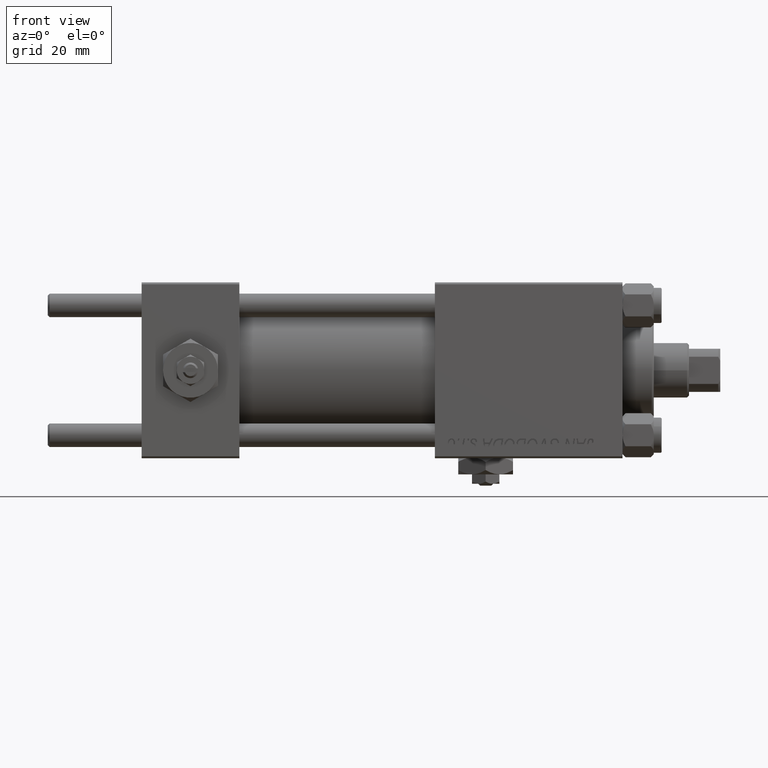
[diagram: clean part render]
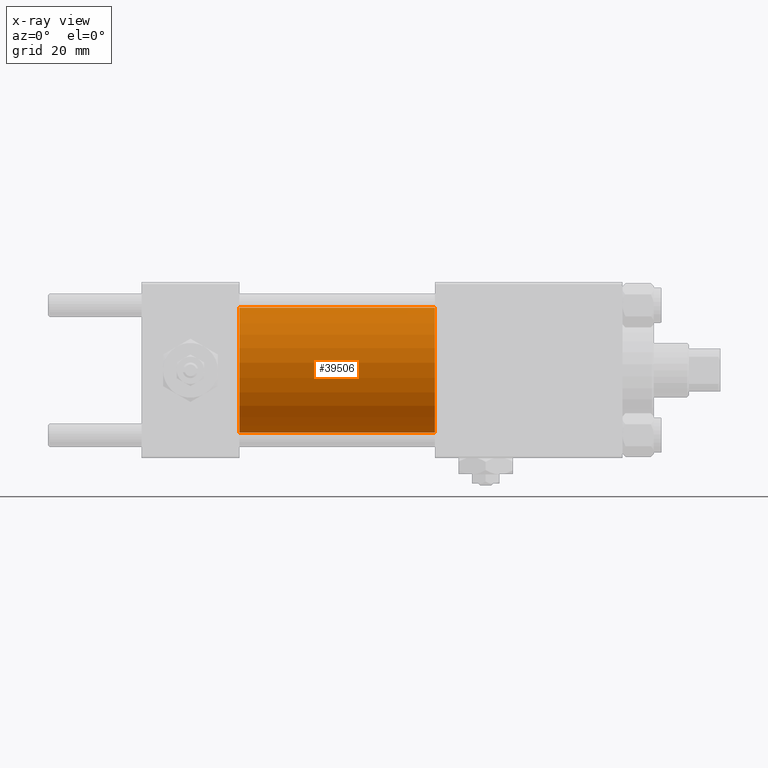
[diagram: x-ray — body ghosted, one internal face saturated and labeled with its STEP entity id]
A machine part, front view, then the same camera in x-ray: the body is ghosted and one INTERNAL B-rep face — a face not visible from any outside direction — is saturated and labeled: STEP entity #39506.
In plain terms, the highlighted cylindrical surface (partial cylindrical patch) has radius 16 mm, axis along (-1, -0, -0).
Its self-contained STEP definition (entity closure, byte-faithful):
#294 = CYLINDRICAL_SURFACE ( 'NONE', #44937, 16.00000000000000000 ) ;
#1472 = DIRECTION ( 'NONE',  ( -1.000000000000000000, -0.000000000000000000, -0.000000000000000000 ) ) ;
#2802 = LINE ( 'NONE', #34771, #21401 ) ;
#3064 = DIRECTION ( 'NONE',  ( -1.000000000000000000, -0.000000000000000000, -0.000000000000000000 ) ) ;
#7466 = VERTEX_POINT ( 'NONE', #37978 ) ;
#8526 = CARTESIAN_POINT ( 'NONE',  ( 25.00000000000000000, 0.000000000000000000, 0.000000000000000000 ) ) ;
#8685 = DIRECTION ( 'NONE',  ( 0.000000000000000000, 0.000000000000000000, 1.000000000000000000 ) ) ;
#8813 = LINE ( 'NONE', #48894, #16994 ) ;
#11588 = CARTESIAN_POINT ( 'NONE',  ( 75.00000000000001421, 0.000000000000000000, 0.000000000000000000 ) ) ;
#13189 = EDGE_CURVE ( 'NONE', #7466, #31220, #20528, .T. ) ;
#16280 = CARTESIAN_POINT ( 'NONE',  ( 75.00000000000001421, 0.000000000000000000, 0.000000000000000000 ) ) ;
#16994 = VECTOR ( 'NONE', #1472, 1000.000000000000000 ) ;
#18619 = CARTESIAN_POINT ( 'NONE',  ( 25.00000000000000000, 1.959434878635765131E-15, -16.00000000000000000 ) ) ;
#18794 = AXIS2_PLACEMENT_3D ( 'NONE', #11588, #27826, #23900 ) ;
#20309 = VERTEX_POINT ( 'NONE', #30118 ) ;
#20528 = CIRCLE ( 'NONE', #21359, 16.00000000000000000 ) ;
#20577 = DIRECTION ( 'NONE',  ( 0.000000000000000000, 0.000000000000000000, -1.000000000000000000 ) ) ;
#21359 = AXIS2_PLACEMENT_3D ( 'NONE', #8526, #24512, #20577 ) ;
#21401 = VECTOR ( 'NONE', #3064, 1000.000000000000000 ) ;
#23167 = ORIENTED_EDGE ( 'NONE', *, *, #13189, .F. ) ;
#23758 = ORIENTED_EDGE ( 'NONE', *, *, #30948, .F. ) ;
#23900 = DIRECTION ( 'NONE',  ( 0.000000000000000000, 0.000000000000000000, -1.000000000000000000 ) ) ;
#24512 = DIRECTION ( 'NONE',  ( 1.000000000000000000, 0.000000000000000000, 0.000000000000000000 ) ) ;
#27826 = DIRECTION ( 'NONE',  ( 1.000000000000000000, 0.000000000000000000, 0.000000000000000000 ) ) ;
#28336 = FACE_OUTER_BOUND ( 'NONE', #42523, .T. ) ;
#30118 = CARTESIAN_POINT ( 'NONE',  ( 75.00000000000001421, 0.000000000000000000, 16.00000000000000000 ) ) ;
#30948 = EDGE_CURVE ( 'NONE', #20309, #7466, #8813, .T. ) ;
#31220 = VERTEX_POINT ( 'NONE', #18619 ) ;
#32267 = DIRECTION ( 'NONE',  ( -1.000000000000000000, -0.000000000000000000, -0.000000000000000000 ) ) ;
#34734 = EDGE_CURVE ( 'NONE', #20309, #51168, #47243, .T. ) ;
#34771 = CARTESIAN_POINT ( 'NONE',  ( 75.00000000000001421, 1.959434878635765131E-15, -16.00000000000000000 ) ) ;
#35445 = ORIENTED_EDGE ( 'NONE', *, *, #44140, .T. ) ;
#37978 = CARTESIAN_POINT ( 'NONE',  ( 25.00000000000000000, 0.000000000000000000, 16.00000000000000000 ) ) ;
#39314 = ORIENTED_EDGE ( 'NONE', *, *, #34734, .T. ) ;
#39506 = ADVANCED_FACE ( 'NONE', ( #28336 ), #294, .F. ) ;
#42523 = EDGE_LOOP ( 'NONE', ( #39314, #35445, #23167, #23758 ) ) ;
#44140 = EDGE_CURVE ( 'NONE', #51168, #31220, #2802, .T. ) ;
#44937 = AXIS2_PLACEMENT_3D ( 'NONE', #16280, #32267, #8685 ) ;
#47243 = CIRCLE ( 'NONE', #18794, 16.00000000000000000 ) ;
#47248 = CARTESIAN_POINT ( 'NONE',  ( 75.00000000000001421, 1.959434878635765131E-15, -16.00000000000000000 ) ) ;
#48894 = CARTESIAN_POINT ( 'NONE',  ( 75.00000000000001421, 0.000000000000000000, 16.00000000000000000 ) ) ;
#51168 = VERTEX_POINT ( 'NONE', #47248 ) ;